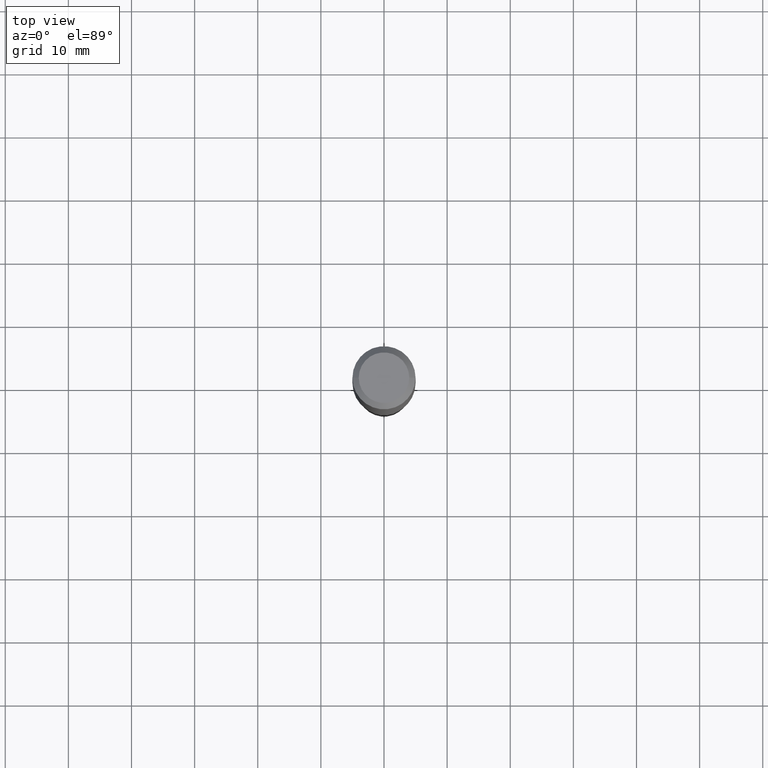
[diagram: clean part render]
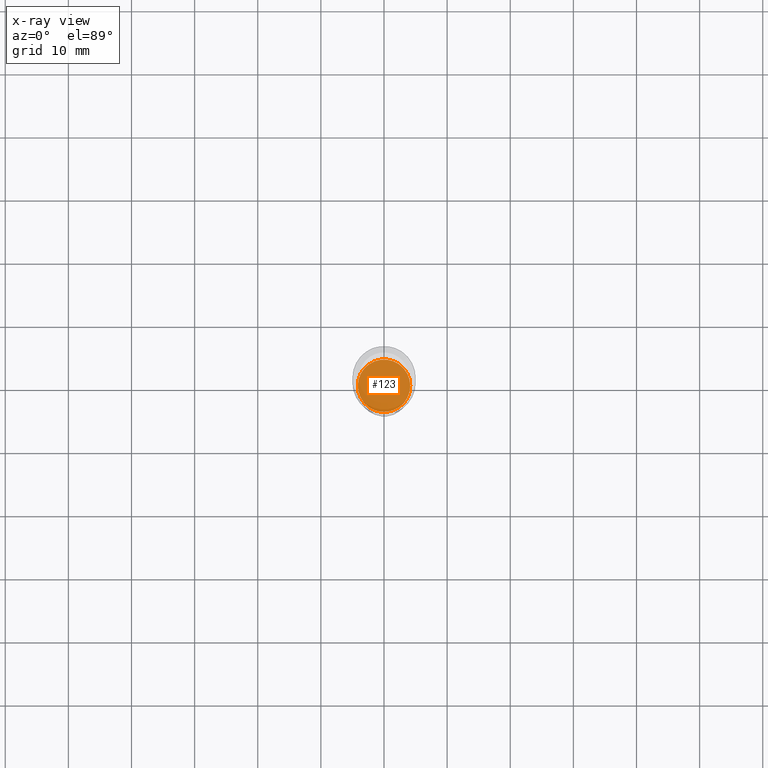
[diagram: x-ray — body ghosted, one internal face saturated and labeled with its STEP entity id]
A machine part, top view, then the same camera in x-ray: the body is ghosted and one INTERNAL B-rep face — a face not visible from any outside direction — is saturated and labeled: STEP entity #123.
In plain terms, the highlighted planar face has unit normal (-0, 0, 1).
Its self-contained STEP definition (entity closure, byte-faithful):
#2 = CIRCLE ( 'NONE', #98, 0.1635500000000000009 ) ;
#38 = AXIS2_PLACEMENT_3D ( 'NONE', #515, #240, #279 ) ;
#98 = AXIS2_PLACEMENT_3D ( 'NONE', #195, #318, #153 ) ;
#102 = CARTESIAN_POINT ( 'NONE',  ( 0.1635500000000000009, -1.138467320156584066E-14, -2.933599999999999763 ) ) ;
#123 = ADVANCED_FACE ( 'NONE', ( #317 ), #507, .F. ) ;
#153 = DIRECTION ( 'NONE',  ( 1.000000000000000000, -6.982962677686272233E-15, 0.000000000000000000 ) ) ;
#166 = EDGE_LOOP ( 'NONE', ( #212, #400 ) ) ;
#195 = CARTESIAN_POINT ( 'NONE',  ( 7.174027289824715126E-29, -1.024260965563025121E-14, -2.933599999999999763 ) ) ;
#212 = ORIENTED_EDGE ( 'NONE', *, *, #513, .F. ) ;
#240 = DIRECTION ( 'NONE',  ( -2.438088387897960049E-29, 3.491481338843145188E-15, 1.000000000000000000 ) ) ;
#279 = DIRECTION ( 'NONE',  ( 1.000000000000000000, -6.982962677686265922E-15, 4.876176775795935793E-29 ) ) ;
#317 = FACE_OUTER_BOUND ( 'NONE', #166, .T. ) ;
#318 = DIRECTION ( 'NONE',  ( -2.445468806185136597E-29, 3.491481338843145583E-15, 1.000000000000000000 ) ) ;
#322 = CARTESIAN_POINT ( 'NONE',  ( -0.1635500000000000009, -9.077867784120494771E-15, -2.933599999999999763 ) ) ;
#332 = CIRCLE ( 'NONE', #437, 0.1635500000000000009 ) ;
#358 = CARTESIAN_POINT ( 'NONE',  ( 7.174027289824715126E-29, -1.024260965563025121E-14, -2.933599999999999763 ) ) ;
#384 = DIRECTION ( 'NONE',  ( -2.445468806185136597E-29, 3.491481338843145583E-15, 1.000000000000000000 ) ) ;
#400 = ORIENTED_EDGE ( 'NONE', *, *, #486, .F. ) ;
#402 = VERTEX_POINT ( 'NONE', #102 ) ;
#419 = VERTEX_POINT ( 'NONE', #322 ) ;
#437 = AXIS2_PLACEMENT_3D ( 'NONE', #358, #384, #474 ) ;
#474 = DIRECTION ( 'NONE',  ( 1.000000000000000000, -6.982962677686272233E-15, 0.000000000000000000 ) ) ;
#486 = EDGE_CURVE ( 'NONE', #419, #402, #332, .T. ) ;
#507 = PLANE ( 'NONE',  #38 ) ;
#513 = EDGE_CURVE ( 'NONE', #402, #419, #2, .T. ) ;
#515 = CARTESIAN_POINT ( 'NONE',  ( 7.174027289824715126E-29, -1.024260965563025121E-14, -2.933599999999999763 ) ) ;